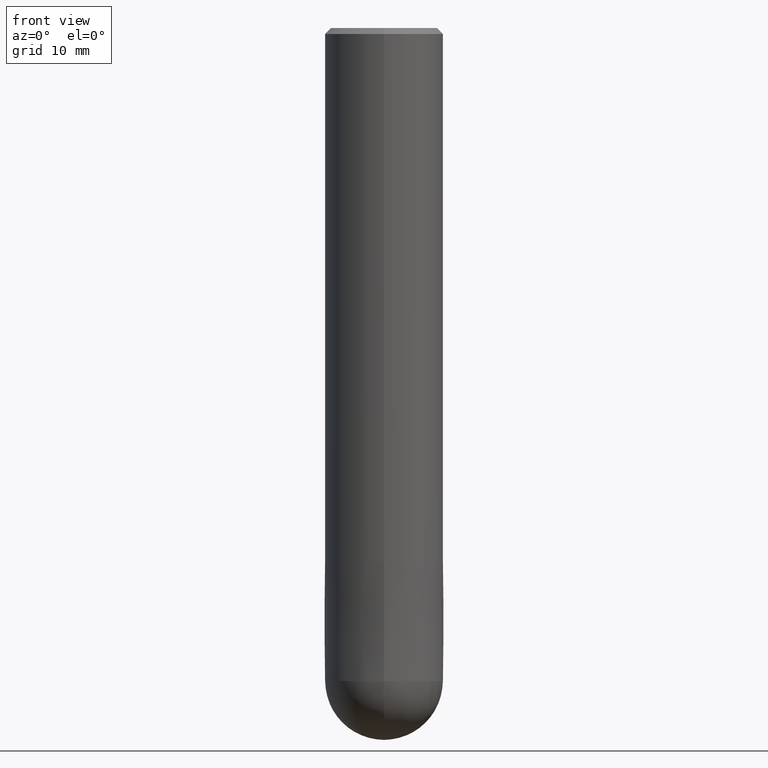
[diagram: clean part render]
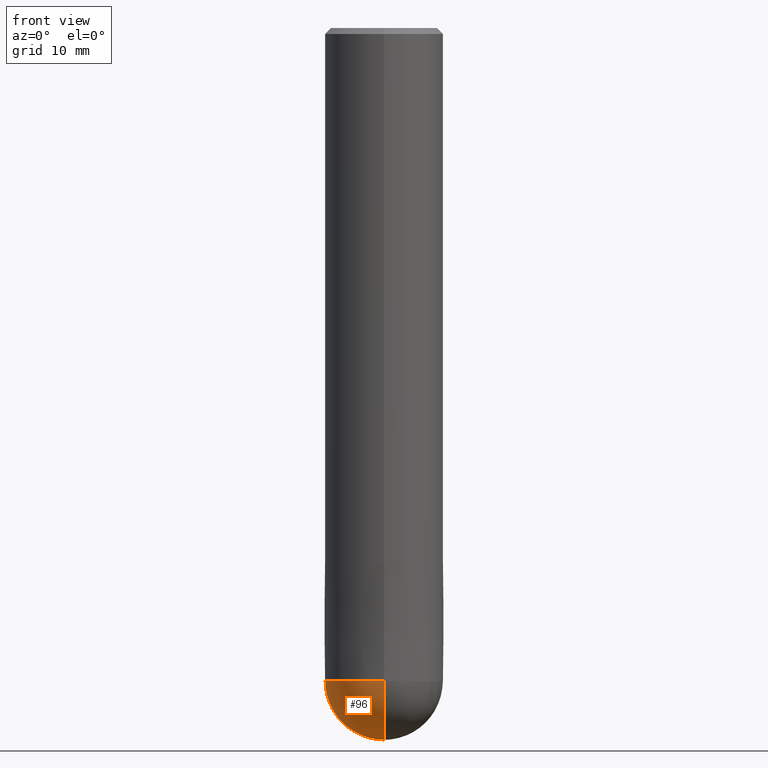
[diagram: same view with one face highlighted and labeled with its STEP entity id]
A machine part, front view. The second image highlights one B-rep face of the part: STEP entity #96.
In plain terms, the highlighted spherical surface has radius 5 mm.
Its self-contained STEP definition (entity closure, byte-faithful):
#90=VERTEX_POINT('',#183);
#96=ADVANCED_FACE('',(#190),#191,.T.);
#106=EDGE_CURVE('',#90,#126,#202,.T.);
#116=EDGE_CURVE('',#90,#126,#213,.T.);
#126=VERTEX_POINT('',#225);
#183=CARTESIAN_POINT('',(6.12303176911188E-016,-5.0,-55.0));
#190=FACE_OUTER_BOUND('',#294,.T.);
#191=SPHERICAL_SURFACE('',#295,4.99999999999999);
#202=CIRCLE('',#312,5.0);
#213=CIRCLE('',#324,4.99999999999999);
#225=CARTESIAN_POINT('',(0.0,5.0,-55.0));
#294=EDGE_LOOP('',(#396,#397));
#295=AXIS2_PLACEMENT_3D('',#398,#399,#400);
#312=AXIS2_PLACEMENT_3D('',#414,#415,#416);
#324=AXIS2_PLACEMENT_3D('',#429,#430,#431);
#396=ORIENTED_EDGE('',*,*,#116,.F.);
#397=ORIENTED_EDGE('',*,*,#106,.T.);
#398=CARTESIAN_POINT('',(0.0,0.0,-55.0));
#399=DIRECTION('',(0.0,1.0,0.0));
#400=DIRECTION('',(0.0,0.0,-1.0));
#414=CARTESIAN_POINT('',(0.0,0.0,-55.0));
#415=DIRECTION('',(0.0,0.0,-1.0));
#416=DIRECTION('',(0.0,1.0,0.0));
#429=CARTESIAN_POINT('',(0.0,0.0,-55.0));
#430=DIRECTION('',(1.0,0.0,1.22460635382238E-016));
#431=DIRECTION('',(-1.22460635382238E-016,0.0,1.0));